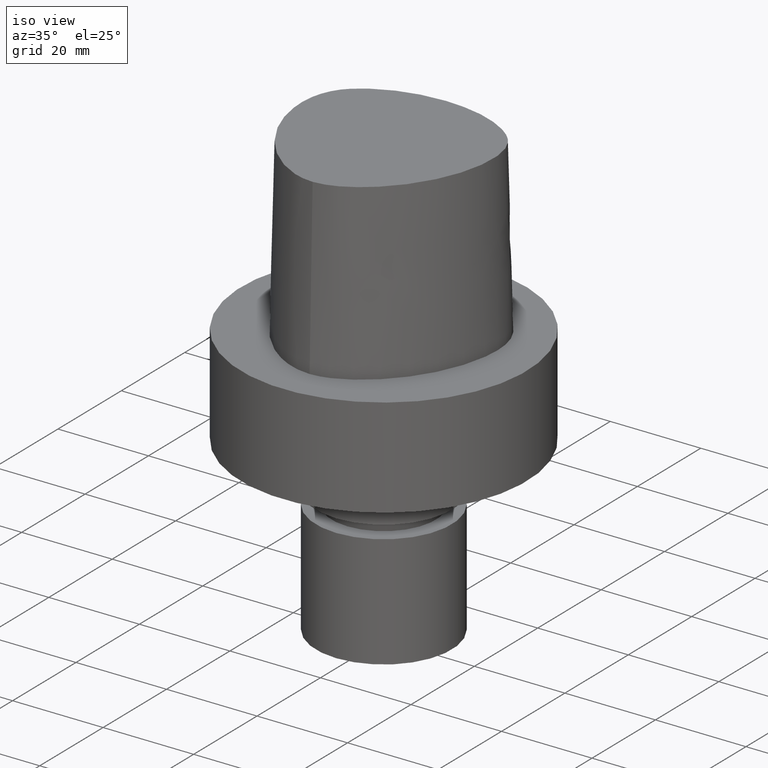
[diagram: clean part render]
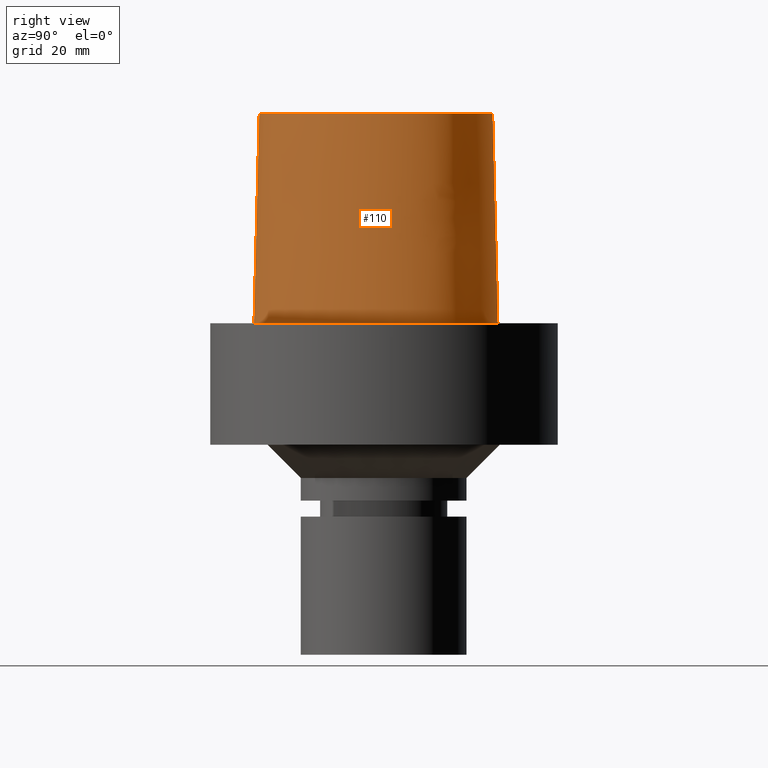
[diagram: tour spotlight — one face highlighted and labeled with its STEP entity id]
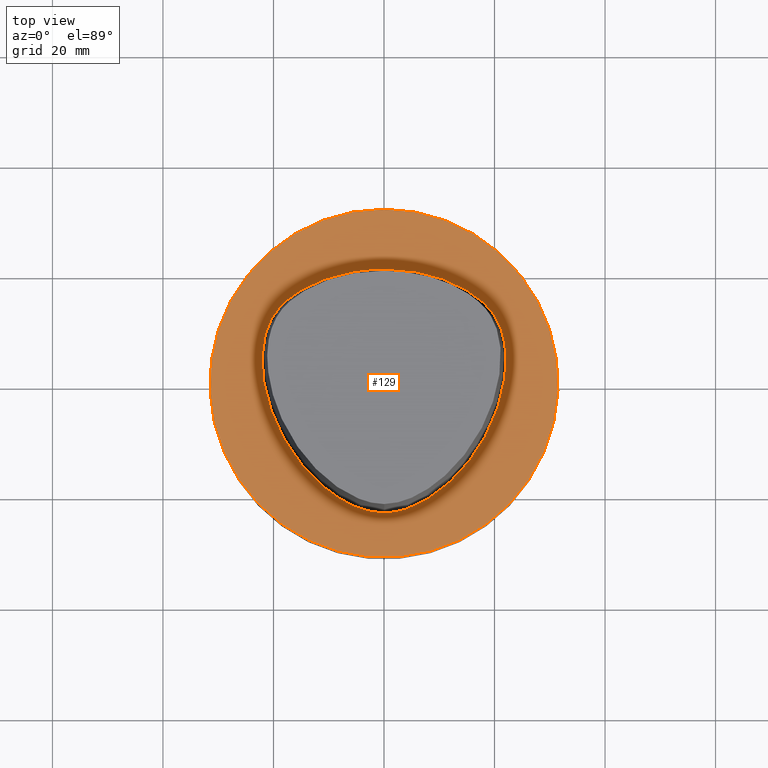
[diagram: tour spotlight — one face highlighted and labeled with its STEP entity id]
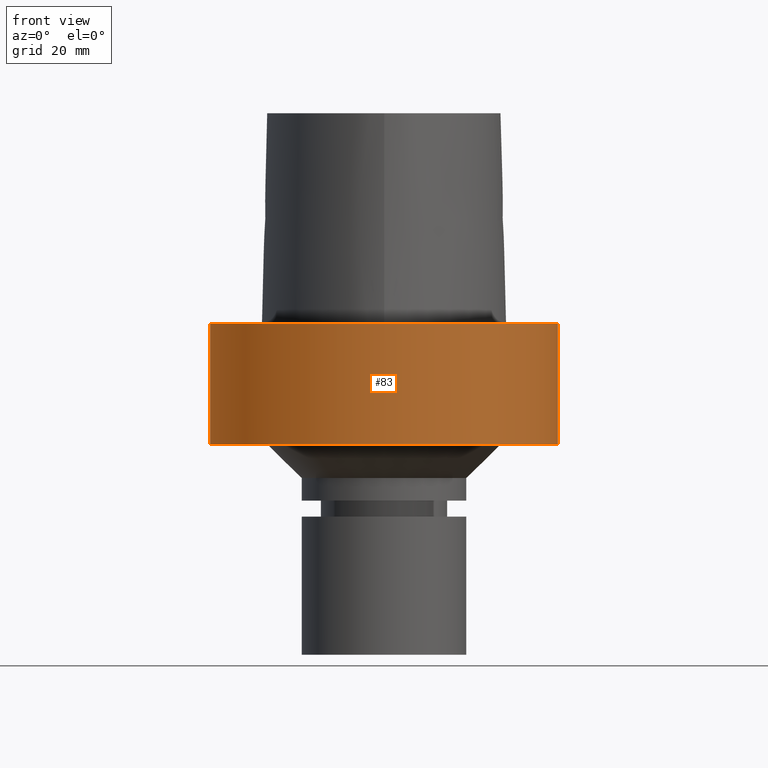
[diagram: tour spotlight — one face highlighted and labeled with its STEP entity id]
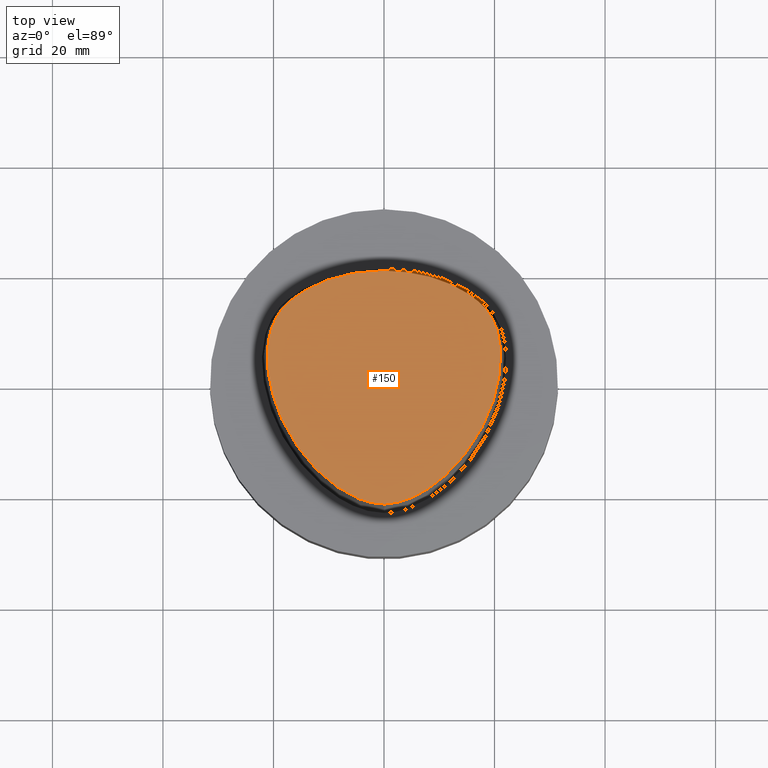
[diagram: tour spotlight — one face highlighted and labeled with its STEP entity id]
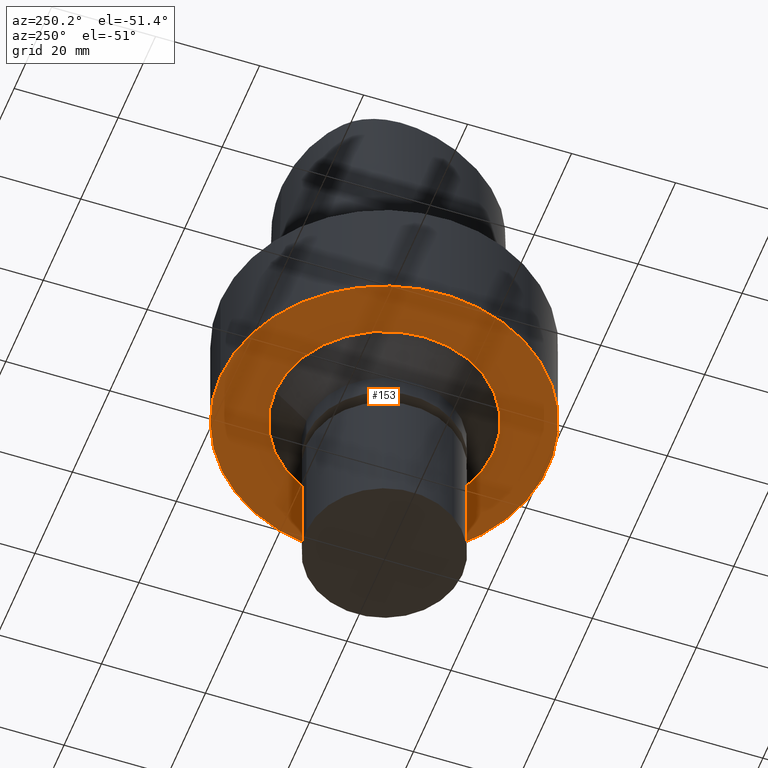
[diagram: tour spotlight — one face highlighted and labeled with its STEP entity id]
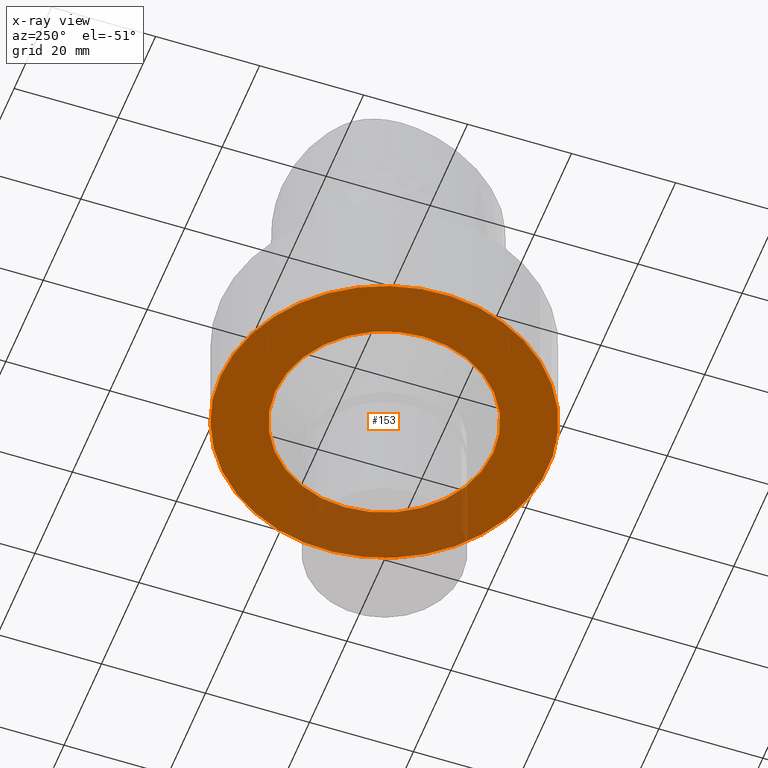
[diagram: x-ray of the same camera — body ghosted, this tour face saturated]
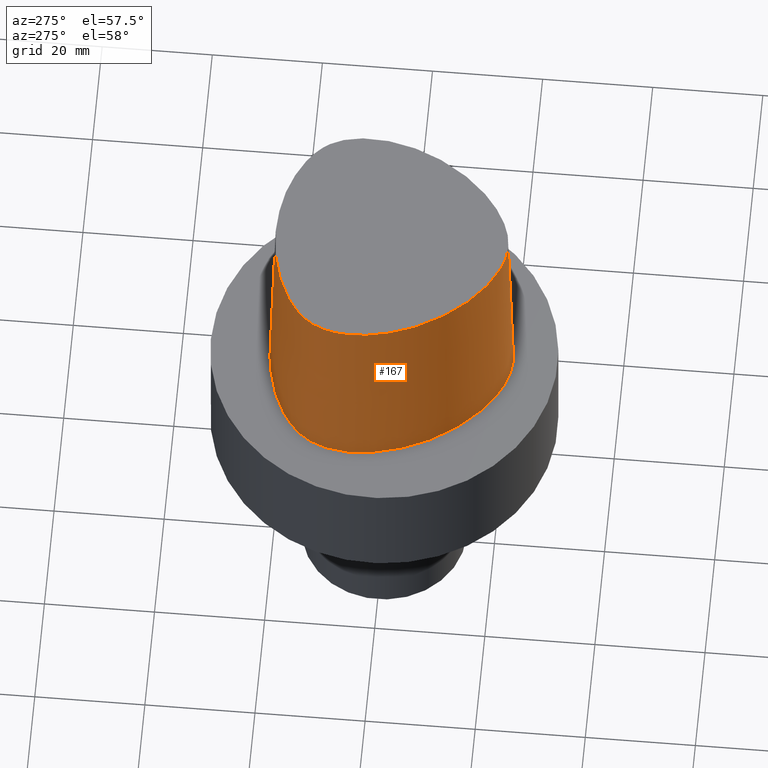
[diagram: tour spotlight — one face highlighted and labeled with its STEP entity id]
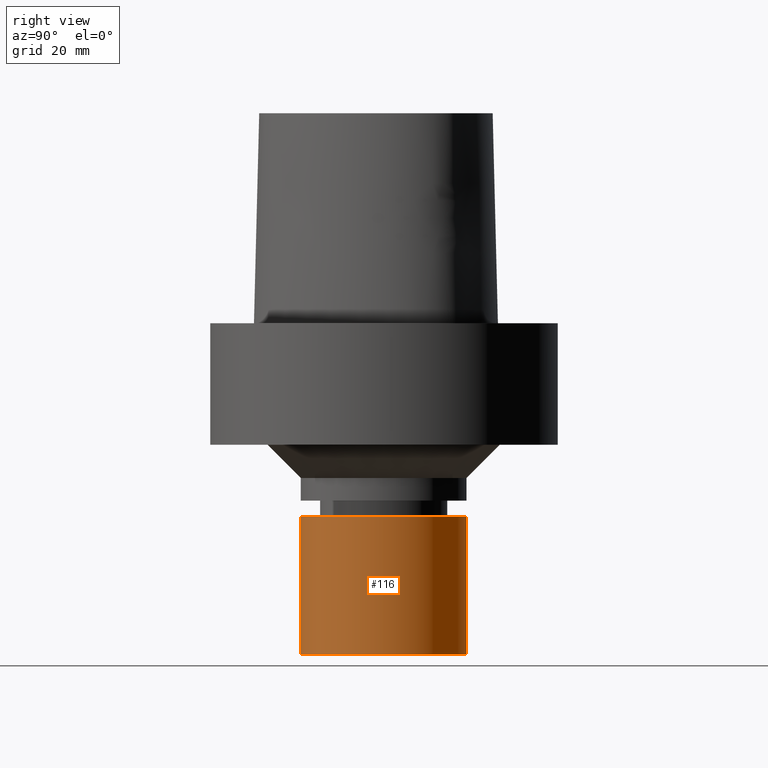
[diagram: tour spotlight — one face highlighted and labeled with its STEP entity id]
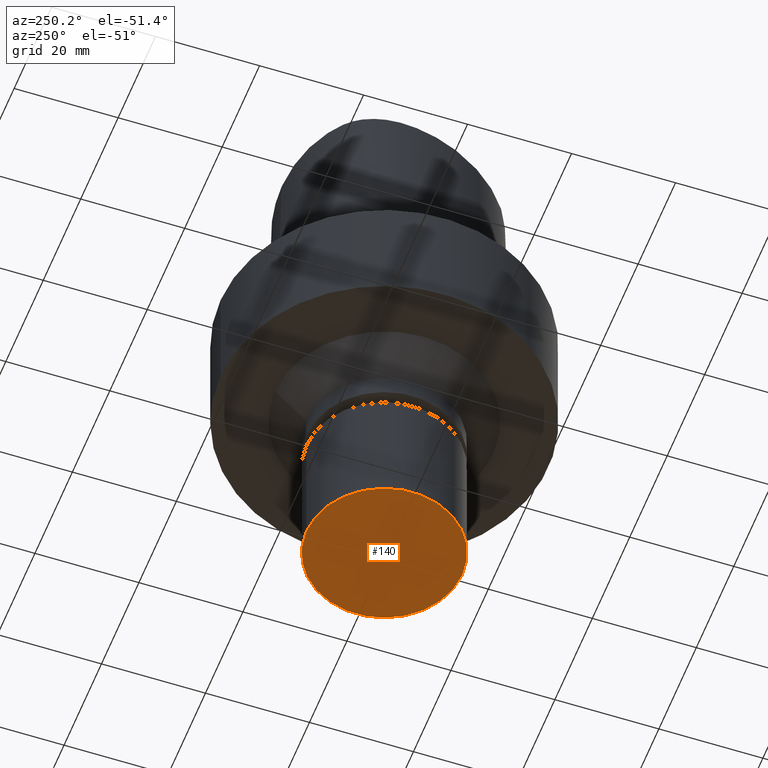
[diagram: tour spotlight — one face highlighted and labeled with its STEP entity id]
A machine part: a face-by-face anatomy tour. The part has 18 B-rep faces; the first image is the clean iso view, then the 8 largest visible faces are spotlighted one at a time (largest first), each with its STEP entity span.

Face 1 — right view, entity #110. In plain terms, the highlighted face is a freeform B-spline surface patch.
Definition (entity closure, byte-faithful):
#91=EDGE_CURVE('Unnamed[1]',#218,#219,#220,.T.);
#93=EDGE_CURVE('Unnamed[1]',#222,#223,#224,.T.);
#105=EDGE_CURVE('Unnamed[1]',#222,#219,#241,.T.);
#110=ADVANCED_FACE('Unnamed[1]',(#247),#248,.T.);
#121=EDGE_CURVE('Unnamed[1]',#223,#218,#265,.T.);
#218=VERTEX_POINT('',#381);
#219=VERTEX_POINT('',#382);
#220=B_SPLINE_CURVE_WITH_KNOTS('',3,(#383,#384,#385,#386,#387,#388,#389,#390,#391,#392,#393,#394,#395,#396,#397,#398,#399),.UNSPECIFIED.,.F.,.F.,(4,1,1,1,1,1,1,1,1,1,1,1,1,1,4),(-13.2302678617486,-12.816821991069,-12.4033761203893,-11.9899302497097,-11.57648437903,-11.1630385083504,-10.9563155730106,-10.7495926376707,-10.3361467669911,-9.92270089631145,-9.09580915495216,-8.26891741359287,-7.44202567223358,-7.02857980155394,-6.6151339308743),.UNSPECIFIED.);
#222=VERTEX_POINT('',#402);
#223=VERTEX_POINT('',#403);
#224=B_SPLINE_CURVE_WITH_KNOTS('',3,(#404,#405,#406,#407,#408,#409,#410,#411,#412,#413,#414,#415,#416,#417,#418,#419),.UNSPECIFIED.,.F.,.F.,(4,1,1,1,1,1,1,1,1,1,1,1,1,4),(6.61513393087476,6.99917207152274,7.48193246986995,7.96289324787093,8.45540287038584,9.10291653679981,9.67129810936083,10.1618749681153,10.6358867802489,11.1080734988593,11.6043706019633,12.09451993853,12.6985979284494,13.2302678617486),.UNSPECIFIED.);
#241=LINE('',#459,#460);
#247=FACE_OUTER_BOUND('',#468,.T.);
#248=B_SPLINE_SURFACE_WITH_KNOTS('',3,3,((#469,#470,#471,#472),(#473,#474,#475,#476),(#477,#478,#479,#480),(#481,#482,#483,#484),(#485,#486,#487,#488),(#489,#490,#491,#492),(#493,#494,#495,#496),(#497,#498,#499,#500),(#501,#502,#503,#504),(#505,#506,#507,#508),(#509,#510,#511,#512),(#513,#514,#515,#516),(#517,#518,#519,#520),(#521,#522,#523,#524),(#525,#526,#527,#528),(#529,#530,#531,#532),(#533,#534,#535,#536)),.UNSPECIFIED.,.F.,.F.,.F.,(4,1,1,1,1,1,1,1,1,1,1,1,1,1,4),(4,4),(-13.2302678617486,-12.816821991069,-12.4033761203893,-11.9899302497097,-11.57648437903,-11.1630385083504,-10.9563155730106,-10.7495926376707,-10.3361467669911,-9.92270089631145,-9.09580915495216,-8.26891741359287,-7.44202567223358,-7.02857980155394,-6.6151339308743),(-3.8,0.0),.UNSPECIFIED.);
#265=LINE('',#557,#558);
#381=CARTESIAN_POINT('',(0.044682985379347,20.6765087343109,1.61778115328528E-031));
#382=CARTESIAN_POINT('',(0.04359356758149,-23.4691235068931,7.78075697532443E-032));
#383=CARTESIAN_POINT('',(0.044682985379347,20.6765087343109,1.61778115328528E-031));
#384=CARTESIAN_POINT('',(1.42379272427753,20.6097915814392,8.62816615085482E-032));
#385=CARTESIAN_POINT('',(4.2230955003445,20.4837538303966,1.4791141972894E-031));
#386=CARTESIAN_POINT('',(8.47220762821777,19.6890432607088,9.86076131526265E-032));
#387=CARTESIAN_POINT('',(12.5141247708253,18.2434968480404,0.0));
#388=CARTESIAN_POINT('',(16.3038624872874,16.1734192182143,1.97215226305253E-031));
#389=CARTESIAN_POINT('',(19.1446913988473,13.7036723639434,-1.97215226305253E-031));
#390=CARTESIAN_POINT('',(20.7319894342149,11.1014620996188,0.0));
#391=CARTESIAN_POINT('',(21.7831756505763,8.28099229708081,-1.97215226305253E-031));
#392=CARTESIAN_POINT('',(22.2258240701438,4.60865440596506,0.0));
#393=CARTESIAN_POINT('',(21.7436130080666,-1.11326526354485,0.0));
#394=CARTESIAN_POINT('',(19.5519487660502,-7.95432366164584,0.0));
#395=CARTESIAN_POINT('',(14.9574167123838,-15.2089785567293,0.0));
#396=CARTESIAN_POINT('',(9.66840283021945,-20.0827414369705,-9.86076131526265E-032));
#397=CARTESIAN_POINT('',(4.51628650521788,-22.7946374572188,-9.86076131526265E-032));
#398=CARTESIAN_POINT('',(1.55867251738073,-23.4612972770043,-1.23259516440783E-032));
#399=CARTESIAN_POINT('',(0.04359356758149,-23.4691235068931,7.78075697532443E-032));
#402=CARTESIAN_POINT('',(0.038736923393866,-22.5191997536361,38.0));
#403=CARTESIAN_POINT('',(-0.001218547003662,19.7276821925089,38.0));
#404=CARTESIAN_POINT('',(0.038736923394311,-22.519199753636,38.0));
#405=CARTESIAN_POINT('',(1.31742058183662,-22.512662269405,38.0));
#406=CARTESIAN_POINT('',(4.2093773447498,-21.9116226439989,38.0));
#407=CARTESIAN_POINT('',(8.20895504542113,-19.7798683845067,38.0));
#408=CARTESIAN_POINT('',(11.9784633234593,-16.681663904162,38.0));
#409=CARTESIAN_POINT('',(15.5308821579362,-12.5807487594113,38.0));
#410=CARTESIAN_POINT('',(18.4566248438667,-7.64932246015528,38.0));
#411=CARTESIAN_POINT('',(20.4036090752029,-2.27012499825289,38.0));
#412=CARTESIAN_POINT('',(21.2357187429189,2.79891401173156,38.0));
#413=CARTESIAN_POINT('',(21.0811206267748,7.62543090736657,38.0));
#414=CARTESIAN_POINT('',(19.3383577336563,12.2772250726194,38.0));
#415=CARTESIAN_POINT('',(15.5796322014404,15.5799672120682,38.0));
#416=CARTESIAN_POINT('',(10.8392956074438,17.9834601687347,38.0));
#417=CARTESIAN_POINT('',(5.56068045850571,19.4586143858472,38.0));
#418=CARTESIAN_POINT('',(1.77223893711014,19.6418877095654,38.0));
#419=CARTESIAN_POINT('',(-0.001218367817519,19.7276822012873,38.0));
#459=CARTESIAN_POINT('',(0.038736923393866,-22.5191997536361,38.0));
#460=VECTOR('',#778,38.0118715498723);
#468=EDGE_LOOP('',(#783,#784,#785,#786));
#469=CARTESIAN_POINT('',(-0.001218367817519,19.7276822012873,38.0));
#470=CARTESIAN_POINT('',(0.014082083248157,20.0439577123075,25.3333333333066));
#471=CARTESIAN_POINT('',(0.029382534313671,20.3602332232908,12.6666666666934));
#472=CARTESIAN_POINT('',(0.044682985379347,20.6765087343109,1.61778115328528E-031));
#473=CARTESIAN_POINT('',(1.37788651195108,19.6609652834875,38.0));
#474=CARTESIAN_POINT('',(1.3931885827258,19.9772407169847,25.3333333333066));
#475=CARTESIAN_POINT('',(1.40849065356095,20.2935162254648,12.6666666666934));
#476=CARTESIAN_POINT('',(1.42379272427753,20.6097915814392,8.62816615085482E-032));
#477=CARTESIAN_POINT('',(4.135446440878,19.5347778787784,38.0));
#478=CARTESIAN_POINT('',(4.16466278851883,19.8511031866125,25.3333333333066));
#479=CARTESIAN_POINT('',(4.1938791526746,20.1674284644204,12.6666666666934));
#480=CARTESIAN_POINT('',(4.2230955003445,20.4837538303966,1.4791141972894E-031));
#481=CARTESIAN_POINT('',(8.213607363795,18.7706026638736,38.0));
#482=CARTESIAN_POINT('',(8.29980745008421,19.0767495109635,25.3333333333066));
#483=CARTESIAN_POINT('',(8.38600751285747,19.3828964329996,12.6666666666934));
#484=CARTESIAN_POINT('',(8.47220762821777,19.6890432607088,9.86076131526265E-032));
#485=CARTESIAN_POINT('',(12.1316338645671,17.3698624840857,38.0));
#486=CARTESIAN_POINT('',(12.2591308270381,17.6610739397708,25.3333333333066));
#487=CARTESIAN_POINT('',(12.3866278083543,17.9522853923553,12.6666666666934));
#488=CARTESIAN_POINT('',(12.5141247708253,18.2434968480404,0.0));
#489=CARTESIAN_POINT('',(15.7706546153679,15.3789501349612,38.0));
#490=CARTESIAN_POINT('',(15.9483905900895,15.6437731794811,25.3333333333066));
#491=CARTESIAN_POINT('',(16.1261265513272,15.9085961736944,12.6666666666934));
#492=CARTESIAN_POINT('',(16.3038624872874,16.1734192182143,1.97215226305253E-031));
#493=CARTESIAN_POINT('',(18.4265894256284,13.0570022172893,38.0));
#494=CARTESIAN_POINT('',(18.6659567517146,13.2725589420689,25.3333333333066));
#495=CARTESIAN_POINT('',(18.9053240921419,13.4881156488541,12.6666666666934));
#496=CARTESIAN_POINT('',(19.1446913988473,13.7036723639434,-1.97215226305253E-031));
#497=CARTESIAN_POINT('',(19.8679958653038,10.6923771981998,38.0));
#498=CARTESIAN_POINT('',(20.1559937048299,10.8287388264873,25.3333333333066));
#499=CARTESIAN_POINT('',(20.4439915656177,10.965100461641,12.6666666666934));
#500=CARTESIAN_POINT('',(20.7319894342149,11.1014620996188,0.0));
#501=CARTESIAN_POINT('',(20.8470867582337,8.07149548576131,38.0));
#502=CARTESIAN_POINT('',(21.1591164072431,8.14132775555392,25.3333333333066));
#503=CARTESIAN_POINT('',(21.4711459821861,8.21116003697855,12.6666666666934));
#504=CARTESIAN_POINT('',(21.7831756505763,8.28099229708081,-1.97215226305253E-031));
#505=CARTESIAN_POINT('',(21.2693244256982,4.61157245650171,38.0));
#506=CARTESIAN_POINT('',(21.5881576801997,4.6105997689982,25.3333333333066));
#507=CARTESIAN_POINT('',(21.9069908544037,4.60962709346857,12.6666666666934));
#508=CARTESIAN_POINT('',(22.2258240701438,4.60865440596506,0.0));
#509=CARTESIAN_POINT('',(20.8071610855575,-0.912828649855193,38.0));
#510=CARTESIAN_POINT('',(21.119311671178,-0.979640884839481,25.3333333333066));
#511=CARTESIAN_POINT('',(21.4314624224461,-1.04645306732201,12.6666666666934));
#512=CARTESIAN_POINT('',(21.7436130080666,-1.11326526354485,0.0));
#513=CARTESIAN_POINT('',(18.6841935581315,-7.54428794252837,38.0));
#514=CARTESIAN_POINT('',(18.9734452551861,-7.6809665891091,25.3333333333066));
#515=CARTESIAN_POINT('',(19.2626970689956,-7.81764505382656,12.6666666666934));
#516=CARTESIAN_POINT('',(19.5519487660502,-7.95432366164584,0.0));
#517=CARTESIAN_POINT('',(14.2175552814,-14.5971504342323,38.0));
#518=CARTESIAN_POINT('',(14.4641757465198,-14.8010930946929,25.3333333333066));
#519=CARTESIAN_POINT('',(14.710796247264,-15.0050359737917,12.6666666666934));
#520=CARTESIAN_POINT('',(14.9574167123838,-15.2089785567293,0.0));
#521=CARTESIAN_POINT('',(9.0844808732933,-19.3179298129689,38.0));
#522=CARTESIAN_POINT('',(9.27912152349017,-19.572866915557,25.3333333333066));
#523=CARTESIAN_POINT('',(9.47376218971294,-19.827804295621,12.6666666666934));
#524=CARTESIAN_POINT('',(9.66840283021945,-20.0827414369705,-9.86076131526265E-032));
#525=CARTESIAN_POINT('',(4.17112919194182,-21.8987568152736,38.0));
#526=CARTESIAN_POINT('',(4.28618163483998,-22.1973837173649,25.3333333333066));
#527=CARTESIAN_POINT('',(4.40123406239433,-22.4960105163661,12.6666666666934));
#528=CARTESIAN_POINT('',(4.51628650521788,-22.7946374572188,-9.86076131526265E-032));
#529=CARTESIAN_POINT('',(1.41533654381097,-22.5120888467812,38.0));
#530=CARTESIAN_POINT('',(1.46311520162011,-22.8284916374445,25.3333333333066));
#531=CARTESIAN_POINT('',(1.51089385942236,-23.144894486341,12.6666666666934));
#532=CARTESIAN_POINT('',(1.55867251738073,-23.4612972770043,-1.23259516440783E-032));
#533=CARTESIAN_POINT('',(0.038736923393866,-22.5191997536361,38.0));
#534=CARTESIAN_POINT('',(0.04035580478973,-22.8358410047159,25.3333333333066));
#535=CARTESIAN_POINT('',(0.041974686185626,-23.1524822558133,12.6666666666934));
#536=CARTESIAN_POINT('',(0.04359356758149,-23.4691235068931,7.78075697532443E-032));
#557=CARTESIAN_POINT('',(-0.001218547003662,19.7276821925089,38.0));
#558=VECTOR('',#805,38.0118715503078);
#778=DIRECTION('',(0.000127766510556,-0.024990186342461,-0.999687688361864));
#783=ORIENTED_EDGE('',*,*,#91,.F.);
#784=ORIENTED_EDGE('',*,*,#121,.F.);
#785=ORIENTED_EDGE('',*,*,#93,.F.);
#786=ORIENTED_EDGE('',*,*,#105,.T.);
#805=DIRECTION('',(0.001207557810519,0.024961321374199,-0.999687688350411));

Face 2 — top view, entity #129. In plain terms, the highlighted planar face has unit normal (-0, -0, 1).
Definition (entity closure, byte-faithful):
#91=EDGE_CURVE('Unnamed[1]',#218,#219,#220,.T.);
#101=EDGE_CURVE('Unnamed[1]',#219,#235,#236,.T.);
#129=ADVANCED_FACE('Unnamed[1]',(#275,#276),#277,.T.);
#131=EDGE_CURVE('Unnamed[1]',#235,#218,#279,.T.);
#169=EDGE_CURVE('Unnamed[1]',#332,#332,#333,.T.);
#218=VERTEX_POINT('',#381);
#219=VERTEX_POINT('',#382);
#220=B_SPLINE_CURVE_WITH_KNOTS('',3,(#383,#384,#385,#386,#387,#388,#389,#390,#391,#392,#393,#394,#395,#396,#397,#398,#399),.UNSPECIFIED.,.F.,.F.,(4,1,1,1,1,1,1,1,1,1,1,1,1,1,4),(-13.2302678617486,-12.816821991069,-12.4033761203893,-11.9899302497097,-11.57648437903,-11.1630385083504,-10.9563155730106,-10.7495926376707,-10.3361467669911,-9.92270089631145,-9.09580915495216,-8.26891741359287,-7.44202567223358,-7.02857980155394,-6.6151339308743),.UNSPECIFIED.);
#235=VERTEX_POINT('',#434);
#236=B_SPLINE_CURVE_WITH_KNOTS('',3,(#435,#436,#437,#438,#439,#440,#441,#442,#443,#444,#445,#446,#447,#448,#449,#450,#451,#452),.UNSPECIFIED.,.F.,.F.,(4,1,1,1,1,1,1,1,1,2,1,1,1,1,4),(-6.6151339308743,-6.20168806019465,-5.78824218951501,-5.37479631883537,-4.96135044815572,-4.13445870679644,-3.30756696543715,-2.89412109475751,-2.48067522407786,-2.06722935339822,-1.65378348271857,-1.24033761203893,-0.826891741359287,-0.413445870679644,0.0),.UNSPECIFIED.);
#275=FACE_BOUND('',#571,.T.);
#276=FACE_OUTER_BOUND('',#572,.T.);
#277=PLANE('',#573);
#279=CIRCLE('',#576,0.949936168436318);
#332=VERTEX_POINT('',#730);
#333=CIRCLE('',#731,31.5);
#381=CARTESIAN_POINT('',(0.044682985379347,20.6765087343109,1.61778115328528E-031));
#382=CARTESIAN_POINT('',(0.04359356758149,-23.4691235068931,7.78075697532443E-032));
#383=CARTESIAN_POINT('',(0.044682985379347,20.6765087343109,1.61778115328528E-031));
#384=CARTESIAN_POINT('',(1.42379272427753,20.6097915814392,8.62816615085482E-032));
#385=CARTESIAN_POINT('',(4.2230955003445,20.4837538303966,1.4791141972894E-031));
#386=CARTESIAN_POINT('',(8.47220762821777,19.6890432607088,9.86076131526265E-032));
#387=CARTESIAN_POINT('',(12.5141247708253,18.2434968480404,0.0));
#388=CARTESIAN_POINT('',(16.3038624872874,16.1734192182143,1.97215226305253E-031));
#389=CARTESIAN_POINT('',(19.1446913988473,13.7036723639434,-1.97215226305253E-031));
#390=CARTESIAN_POINT('',(20.7319894342149,11.1014620996188,0.0));
#391=CARTESIAN_POINT('',(21.7831756505763,8.28099229708081,-1.97215226305253E-031));
#392=CARTESIAN_POINT('',(22.2258240701438,4.60865440596506,0.0));
#393=CARTESIAN_POINT('',(21.7436130080666,-1.11326526354485,0.0));
#394=CARTESIAN_POINT('',(19.5519487660502,-7.95432366164584,0.0));
#395=CARTESIAN_POINT('',(14.9574167123838,-15.2089785567293,0.0));
#396=CARTESIAN_POINT('',(9.66840283021945,-20.0827414369705,-9.86076131526265E-032));
#397=CARTESIAN_POINT('',(4.51628650521788,-22.7946374572188,-9.86076131526265E-032));
#398=CARTESIAN_POINT('',(1.55867251738073,-23.4612972770043,-1.23259516440783E-032));
#399=CARTESIAN_POINT('',(0.04359356758149,-23.4691235068931,7.78075697532443E-032));
#434=CARTESIAN_POINT('',(-0.045171994691285,20.6766009553285,1.6755590516169E-031));
#435=CARTESIAN_POINT('',(0.04359356758149,-23.4691235068931,7.78075697532443E-032));
#436=CARTESIAN_POINT('',(-1.4714994713963,-23.4767895315797,2.46519032881566E-032));
#437=CARTESIAN_POINT('',(-4.43923476371401,-22.821149804767,-4.93038065763132E-032));
#438=CARTESIAN_POINT('',(-8.35043230079961,-20.8000751253325,-9.86076131526265E-032));
#439=CARTESIAN_POINT('',(-11.744900222602,-18.1556117874078,-1.97215226305253E-031));
#440=CARTESIAN_POINT('',(-15.6989602501314,-14.0406306929147,-1.97215226305253E-031));
#441=CARTESIAN_POINT('',(-19.5352875070682,-8.00624990770787,1.97215226305253E-031));
#442=CARTESIAN_POINT('',(-21.7205626190491,-1.16081708945282,0.0));
#443=CARTESIAN_POINT('',(-22.2486616783342,4.54965558738736,0.0));
#444=CARTESIAN_POINT('',(-21.6646421256468,9.00229539124618,0.0));
#445=CARTESIAN_POINT('',(-20.3945635471922,11.7780544971003,0.0));
#446=CARTESIAN_POINT('',(-18.5925528034471,14.1980602922581,0.0));
#447=CARTESIAN_POINT('',(-16.3226584122258,16.1777748720707,0.0));
#448=CARTESIAN_POINT('',(-12.5076407874579,18.2524201541303,9.86076131526265E-032));
#449=CARTESIAN_POINT('',(-8.46776192107786,19.679114377952,9.86076131526265E-032));
#450=CARTESIAN_POINT('',(-4.23043497193604,20.487781597334,1.97215226305253E-031));
#451=CARTESIAN_POINT('',(-1.42313094248379,20.6127745766442,1.10933564796705E-031));
#452=CARTESIAN_POINT('',(-0.045171994691285,20.6766009553285,1.6755590516169E-031));
#571=EDGE_LOOP('',(#817,#818,#819));
#572=EDGE_LOOP('',(#820));
#573=AXIS2_PLACEMENT_3D('',#821,#822,#823);
#576=AXIS2_PLACEMENT_3D('',#824,#825,#826);
#730=CARTESIAN_POINT('',(-3.88267476788467E-031,31.5,3.85763741731416E-015));
#731=AXIS2_PLACEMENT_3D('',#881,#882,#883);
#817=ORIENTED_EDGE('',*,*,#91,.T.);
#818=ORIENTED_EDGE('',*,*,#101,.T.);
#819=ORIENTED_EDGE('',*,*,#131,.T.);
#820=ORIENTED_EDGE('',*,*,#169,.F.);
#821=CARTESIAN_POINT('',(-1.94133738394233E-031,15.75,1.92881870865708E-015));
#822=DIRECTION('',(-6.12323399573677E-017,-1.22464679914735E-016,1.0));
#823=DIRECTION('',(1.23259516440783E-032,-1.0,-1.22464679914735E-016));
#824=CARTESIAN_POINT('',(-0.001218547003662,19.7276821925089,1.97178046083078E-015));
#825=DIRECTION('',(6.12323399573677E-017,1.22464679914735E-016,-1.0));
#826=DIRECTION('',(-0.046269895968506,0.998928974816059,1.19500303158668E-016));
#881=CARTESIAN_POINT('',(0.0,0.0,0.0));
#882=DIRECTION('',(6.12323399573677E-017,1.22464679914735E-016,-1.0));
#883=DIRECTION('',(-1.23259516440783E-032,1.0,1.22464679914735E-016));

Face 3 — front view, entity #83. In plain terms, the highlighted cylindrical surface (bore or boss wall) has radius 31.5 mm, axis along (0, 0, -1).
Definition (entity closure, byte-faithful):
#83=ADVANCED_FACE('Unnamed[1]',(#204,#205),#206,.T.);
#123=EDGE_CURVE('Unnamed[1]',#267,#267,#268,.T.);
#169=EDGE_CURVE('Unnamed[1]',#332,#332,#333,.T.);
#204=FACE_BOUND('',#364,.T.);
#205=FACE_BOUND('',#365,.T.);
#206=CYLINDRICAL_SURFACE('',#366,31.5);
#267=VERTEX_POINT('',#561);
#268=CIRCLE('',#562,31.5);
#332=VERTEX_POINT('',#730);
#333=CIRCLE('',#731,31.5);
#364=EDGE_LOOP('',(#749));
#365=EDGE_LOOP('',(#750));
#366=AXIS2_PLACEMENT_3D('',#751,#752,#753);
#561=CARTESIAN_POINT('',(1.34711147906212E-015,31.5,-22.0000000000006));
#562=AXIS2_PLACEMENT_3D('',#806,#807,#808);
#730=CARTESIAN_POINT('',(-3.88267476788467E-031,31.5,3.85763741731416E-015));
#731=AXIS2_PLACEMENT_3D('',#881,#882,#883);
#749=ORIENTED_EDGE('',*,*,#123,.F.);
#750=ORIENTED_EDGE('',*,*,#169,.T.);
#751=CARTESIAN_POINT('',(6.73555739531062E-016,1.34711147906212E-015,-11.0000000000003));
#752=DIRECTION('',(6.12323399573677E-017,1.22464679914735E-016,-1.0));
#753=DIRECTION('',(-1.23259516440783E-032,1.0,1.22464679914735E-016));
#806=CARTESIAN_POINT('',(1.34711147906212E-015,2.69422295812425E-015,-22.0000000000006));
#807=DIRECTION('',(6.12323399573677E-017,1.22464679914735E-016,-1.0));
#808=DIRECTION('',(-1.23259516440783E-032,1.0,1.22464679914735E-016));
#881=CARTESIAN_POINT('',(0.0,0.0,0.0));
#882=DIRECTION('',(6.12323399573677E-017,1.22464679914735E-016,-1.0));
#883=DIRECTION('',(-1.23259516440783E-032,1.0,1.22464679914735E-016));

Face 4 — top view, entity #150. In plain terms, the highlighted planar face has unit normal (-0, 0, 1).
Definition (entity closure, byte-faithful):
#93=EDGE_CURVE('Unnamed[1]',#222,#223,#224,.T.);
#150=ADVANCED_FACE('Unnamed[1]',(#305),#306,.T.);
#157=EDGE_CURVE('Unnamed[1]',#223,#222,#315,.T.);
#222=VERTEX_POINT('',#402);
#223=VERTEX_POINT('',#403);
#224=B_SPLINE_CURVE_WITH_KNOTS('',3,(#404,#405,#406,#407,#408,#409,#410,#411,#412,#413,#414,#415,#416,#417,#418,#419),.UNSPECIFIED.,.F.,.F.,(4,1,1,1,1,1,1,1,1,1,1,1,1,4),(6.61513393087476,6.99917207152274,7.48193246986995,7.96289324787093,8.45540287038584,9.10291653679981,9.67129810936083,10.1618749681153,10.6358867802489,11.1080734988593,11.6043706019633,12.09451993853,12.6985979284494,13.2302678617486),.UNSPECIFIED.);
#305=FACE_OUTER_BOUND('',#608,.T.);
#306=PLANE('',#609);
#315=B_SPLINE_CURVE_WITH_KNOTS('',3,(#622,#623,#624,#625,#626,#627,#628,#629,#630,#631,#632,#633,#634,#635,#636,#637),.UNSPECIFIED.,.F.,.F.,(4,1,1,1,1,1,1,1,1,1,1,1,1,4),(0.0,0.447924670568964,0.9388024242536,1.50591409090711,2.07314340012323,2.72424957442464,3.2253501842849,3.80982102049476,4.34867996267067,4.85900173381144,5.37972031856977,6.03459825488646,6.61113557741484,6.61513393087395),.UNSPECIFIED.);
#402=CARTESIAN_POINT('',(0.038736923393866,-22.5191997536361,38.0));
#403=CARTESIAN_POINT('',(-0.001218547003662,19.7276821925089,38.0));
#404=CARTESIAN_POINT('',(0.038736923394311,-22.519199753636,38.0));
#405=CARTESIAN_POINT('',(1.31742058183662,-22.512662269405,38.0));
#406=CARTESIAN_POINT('',(4.2093773447498,-21.9116226439989,38.0));
#407=CARTESIAN_POINT('',(8.20895504542113,-19.7798683845067,38.0));
#408=CARTESIAN_POINT('',(11.9784633234593,-16.681663904162,38.0));
#409=CARTESIAN_POINT('',(15.5308821579362,-12.5807487594113,38.0));
#410=CARTESIAN_POINT('',(18.4566248438667,-7.64932246015528,38.0));
#411=CARTESIAN_POINT('',(20.4036090752029,-2.27012499825289,38.0));
#412=CARTESIAN_POINT('',(21.2357187429189,2.79891401173156,38.0));
#413=CARTESIAN_POINT('',(21.0811206267748,7.62543090736657,38.0));
#414=CARTESIAN_POINT('',(19.3383577336563,12.2772250726194,38.0));
#415=CARTESIAN_POINT('',(15.5796322014404,15.5799672120682,38.0));
#416=CARTESIAN_POINT('',(10.8392956074438,17.9834601687347,38.0));
#417=CARTESIAN_POINT('',(5.56068045850571,19.4586143858472,38.0));
#418=CARTESIAN_POINT('',(1.77223893711014,19.6418877095654,38.0));
#419=CARTESIAN_POINT('',(-0.001218367817519,19.7276822012873,38.0));
#608=EDGE_LOOP('',(#852,#853));
#609=AXIS2_PLACEMENT_3D('',#854,#855,#856);
#622=CARTESIAN_POINT('',(-0.001218547003662,19.7276821925089,38.0));
#623=CARTESIAN_POINT('',(-1.49408492138443,19.6585333605309,38.0));
#624=CARTESIAN_POINT('',(-4.62297391420352,19.513604770166,38.0));
#625=CARTESIAN_POINT('',(-9.56160616752212,18.4291575730197,38.0));
#626=CARTESIAN_POINT('',(-14.5427684976927,16.2697452580488,38.0));
#627=CARTESIAN_POINT('',(-19.4315563551602,12.5302108980807,38.0));
#628=CARTESIAN_POINT('',(-21.306358833612,6.76352894547076,38.0));
#629=CARTESIAN_POINT('',(-21.0724946936277,0.957075236984038,38.0));
#630=CARTESIAN_POINT('',(-19.7876470880144,-4.34628503581652,38.0));
#631=CARTESIAN_POINT('',(-17.5396999600095,-9.33314444653089,38.0));
#632=CARTESIAN_POINT('',(-14.645447733857,-13.7185760345629,38.0));
#633=CARTESIAN_POINT('',(-10.7996726536643,-17.856257282137,38.0));
#634=CARTESIAN_POINT('',(-6.00479510196376,-21.2687382067675,38.0));
#635=CARTESIAN_POINT('',(-1.90747171908525,-22.5250621415864,38.0));
#636=CARTESIAN_POINT('',(0.025424107066464,-22.5192678176378,38.0));
#637=CARTESIAN_POINT('',(0.038736923394311,-22.519199753636,38.0));
#852=ORIENTED_EDGE('',*,*,#157,.T.);
#853=ORIENTED_EDGE('',*,*,#93,.T.);
#854=CARTESIAN_POINT('',(0.008647668684817,1.77491953635526,38.0));
#855=DIRECTION('',(-0.0,2.95577857036584E-049,1.0));
#856=DIRECTION('',(1.0,0.0,0.0));

Face 5 — auxiliary view, entity #153. An x-ray twin of the same camera follows (body ghosted, this face saturated) — the face is partly hidden behind the body. In plain terms, the highlighted planar face has unit normal (0, -0, -1).
Definition (entity closure, byte-faithful):
#95=EDGE_CURVE('Unnamed[1]',#226,#226,#227,.T.);
#123=EDGE_CURVE('Unnamed[1]',#267,#267,#268,.T.);
#153=ADVANCED_FACE('Unnamed[1]',(#309,#310),#311,.T.);
#226=VERTEX_POINT('',#422);
#227=CIRCLE('',#423,20.9999999999995);
#267=VERTEX_POINT('',#561);
#268=CIRCLE('',#562,31.5);
#309=FACE_BOUND('',#613,.T.);
#310=FACE_OUTER_BOUND('',#614,.T.);
#311=PLANE('',#615);
#422=CARTESIAN_POINT('',(1.34711147906212E-015,20.9999999999995,-22.0000000000005));
#423=AXIS2_PLACEMENT_3D('',#766,#767,#768);
#561=CARTESIAN_POINT('',(1.34711147906212E-015,31.5,-22.0000000000006));
#562=AXIS2_PLACEMENT_3D('',#806,#807,#808);
#613=EDGE_LOOP('',(#858));
#614=EDGE_LOOP('',(#859));
#615=AXIS2_PLACEMENT_3D('',#860,#861,#862);
#766=CARTESIAN_POINT('',(1.34711147906212E-015,2.69422295812424E-015,-22.0000000000005));
#767=DIRECTION('',(6.12323399573677E-017,1.22464679914735E-016,-1.0));
#768=DIRECTION('',(-1.23259516440783E-032,1.0,1.22464679914735E-016));
#806=CARTESIAN_POINT('',(1.34711147906212E-015,2.69422295812425E-015,-22.0000000000006));
#807=DIRECTION('',(6.12323399573677E-017,1.22464679914735E-016,-1.0));
#808=DIRECTION('',(-1.23259516440783E-032,1.0,1.22464679914735E-016));
#858=ORIENTED_EDGE('',*,*,#95,.F.);
#859=ORIENTED_EDGE('',*,*,#123,.T.);
#860=CARTESIAN_POINT('',(1.34711147906212E-015,26.2499999999997,-22.0000000000005));
#861=DIRECTION('',(6.12323399573677E-017,-4.61448689181902E-015,-1.0));
#862=DIRECTION('',(2.7772867735791E-031,1.0,-4.61448689181902E-015));

Face 6 — auxiliary view, entity #167. In plain terms, the highlighted face is a freeform B-spline surface patch.
Definition (entity closure, byte-faithful):
#101=EDGE_CURVE('Unnamed[1]',#219,#235,#236,.T.);
#105=EDGE_CURVE('Unnamed[1]',#222,#219,#241,.T.);
#155=EDGE_CURVE('Unnamed[1]',#223,#235,#313,.T.);
#157=EDGE_CURVE('Unnamed[1]',#223,#222,#315,.T.);
#167=ADVANCED_FACE('Unnamed[1]',(#329),#330,.T.);
#219=VERTEX_POINT('',#382);
#222=VERTEX_POINT('',#402);
#223=VERTEX_POINT('',#403);
#235=VERTEX_POINT('',#434);
#236=B_SPLINE_CURVE_WITH_KNOTS('',3,(#435,#436,#437,#438,#439,#440,#441,#442,#443,#444,#445,#446,#447,#448,#449,#450,#451,#452),.UNSPECIFIED.,.F.,.F.,(4,1,1,1,1,1,1,1,1,2,1,1,1,1,4),(-6.6151339308743,-6.20168806019465,-5.78824218951501,-5.37479631883537,-4.96135044815572,-4.13445870679644,-3.30756696543715,-2.89412109475751,-2.48067522407786,-2.06722935339822,-1.65378348271857,-1.24033761203893,-0.826891741359287,-0.413445870679644,0.0),.UNSPECIFIED.);
#241=LINE('',#459,#460);
#313=LINE('',#618,#619);
#315=B_SPLINE_CURVE_WITH_KNOTS('',3,(#622,#623,#624,#625,#626,#627,#628,#629,#630,#631,#632,#633,#634,#635,#636,#637),.UNSPECIFIED.,.F.,.F.,(4,1,1,1,1,1,1,1,1,1,1,1,1,4),(0.0,0.447924670568964,0.9388024242536,1.50591409090711,2.07314340012323,2.72424957442464,3.2253501842849,3.80982102049476,4.34867996267067,4.85900173381144,5.37972031856977,6.03459825488646,6.61113557741484,6.61513393087395),.UNSPECIFIED.);
#329=FACE_OUTER_BOUND('',#655,.T.);
#330=B_SPLINE_SURFACE_WITH_KNOTS('',3,3,((#656,#657,#658,#659),(#660,#661,#662,#663),(#664,#665,#666,#667),(#668,#669,#670,#671),(#672,#673,#674,#675),(#676,#677,#678,#679),(#680,#681,#682,#683),(#684,#685,#686,#687),(#688,#689,#690,#691),(#692,#693,#694,#695),(#696,#697,#698,#699),(#700,#701,#702,#703),(#704,#705,#706,#707),(#708,#709,#710,#711),(#712,#713,#714,#715),(#716,#717,#718,#719),(#720,#721,#722,#723),(#724,#725,#726,#727)),.UNSPECIFIED.,.F.,.F.,.F.,(4,1,1,1,1,1,1,1,1,2,1,1,1,1,4),(4,4),(-6.6151339308743,-6.20168806019465,-5.78824218951501,-5.37479631883537,-4.96135044815572,-4.13445870679644,-3.30756696543715,-2.89412109475751,-2.48067522407786,-2.06722935339822,-1.65378348271857,-1.24033761203893,-0.826891741359287,-0.413445870679644,0.0),(-3.8,0.0),.UNSPECIFIED.);
#382=CARTESIAN_POINT('',(0.04359356758149,-23.4691235068931,7.78075697532443E-032));
#402=CARTESIAN_POINT('',(0.038736923393866,-22.5191997536361,38.0));
#403=CARTESIAN_POINT('',(-0.001218547003662,19.7276821925089,38.0));
#434=CARTESIAN_POINT('',(-0.045171994691285,20.6766009553285,1.6755590516169E-031));
#435=CARTESIAN_POINT('',(0.04359356758149,-23.4691235068931,7.78075697532443E-032));
#436=CARTESIAN_POINT('',(-1.4714994713963,-23.4767895315797,2.46519032881566E-032));
#437=CARTESIAN_POINT('',(-4.43923476371401,-22.821149804767,-4.93038065763132E-032));
#438=CARTESIAN_POINT('',(-8.35043230079961,-20.8000751253325,-9.86076131526265E-032));
#439=CARTESIAN_POINT('',(-11.744900222602,-18.1556117874078,-1.97215226305253E-031));
#440=CARTESIAN_POINT('',(-15.6989602501314,-14.0406306929147,-1.97215226305253E-031));
#441=CARTESIAN_POINT('',(-19.5352875070682,-8.00624990770787,1.97215226305253E-031));
#442=CARTESIAN_POINT('',(-21.7205626190491,-1.16081708945282,0.0));
#443=CARTESIAN_POINT('',(-22.2486616783342,4.54965558738736,0.0));
#444=CARTESIAN_POINT('',(-21.6646421256468,9.00229539124618,0.0));
#445=CARTESIAN_POINT('',(-20.3945635471922,11.7780544971003,0.0));
#446=CARTESIAN_POINT('',(-18.5925528034471,14.1980602922581,0.0));
#447=CARTESIAN_POINT('',(-16.3226584122258,16.1777748720707,0.0));
#448=CARTESIAN_POINT('',(-12.5076407874579,18.2524201541303,9.86076131526265E-032));
#449=CARTESIAN_POINT('',(-8.46776192107786,19.679114377952,9.86076131526265E-032));
#450=CARTESIAN_POINT('',(-4.23043497193604,20.487781597334,1.97215226305253E-031));
#451=CARTESIAN_POINT('',(-1.42313094248379,20.6127745766442,1.10933564796705E-031));
#452=CARTESIAN_POINT('',(-0.045171994691285,20.6766009553285,1.6755590516169E-031));
#459=CARTESIAN_POINT('',(0.038736923393866,-22.5191997536361,38.0));
#460=VECTOR('',#778,38.0118715498723);
#618=CARTESIAN_POINT('',(-0.001218547003662,19.7276821925089,38.0));
#619=VECTOR('',#863,38.0118715498723);
#622=CARTESIAN_POINT('',(-0.001218547003662,19.7276821925089,38.0));
#623=CARTESIAN_POINT('',(-1.49408492138443,19.6585333605309,38.0));
#624=CARTESIAN_POINT('',(-4.62297391420352,19.513604770166,38.0));
#625=CARTESIAN_POINT('',(-9.56160616752212,18.4291575730197,38.0));
#626=CARTESIAN_POINT('',(-14.5427684976927,16.2697452580488,38.0));
#627=CARTESIAN_POINT('',(-19.4315563551602,12.5302108980807,38.0));
#628=CARTESIAN_POINT('',(-21.306358833612,6.76352894547076,38.0));
#629=CARTESIAN_POINT('',(-21.0724946936277,0.957075236984038,38.0));
#630=CARTESIAN_POINT('',(-19.7876470880144,-4.34628503581652,38.0));
#631=CARTESIAN_POINT('',(-17.5396999600095,-9.33314444653089,38.0));
#632=CARTESIAN_POINT('',(-14.645447733857,-13.7185760345629,38.0));
#633=CARTESIAN_POINT('',(-10.7996726536643,-17.856257282137,38.0));
#634=CARTESIAN_POINT('',(-6.00479510196376,-21.2687382067675,38.0));
#635=CARTESIAN_POINT('',(-1.90747171908525,-22.5250621415864,38.0));
#636=CARTESIAN_POINT('',(0.025424107066464,-22.5192678176378,38.0));
#637=CARTESIAN_POINT('',(0.038736923394311,-22.519199753636,38.0));
#655=EDGE_LOOP('',(#877,#878,#879,#880));
#656=CARTESIAN_POINT('',(0.038736923393866,-22.5191997536361,38.0));
#657=CARTESIAN_POINT('',(0.04035580478973,-22.8358410047159,25.3333333333066));
#658=CARTESIAN_POINT('',(0.041974686185626,-23.1524822558133,12.6666666666934));
#659=CARTESIAN_POINT('',(0.04359356758149,-23.4691235068931,7.78075697532443E-032));
#660=CARTESIAN_POINT('',(-1.33786123484754,-22.5261650259856,38.0));
#661=CARTESIAN_POINT('',(-1.38240731367927,-22.8430399310626,25.3333333333066));
#662=CARTESIAN_POINT('',(-1.42695339249092,-23.1599147815484,12.6666666666934));
#663=CARTESIAN_POINT('',(-1.4714994713963,-23.4767895315797,2.46519032881566E-032));
#664=CARTESIAN_POINT('',(-4.08909358431842,-21.9268839879558,38.0));
#665=CARTESIAN_POINT('',(-4.20580731135515,-22.2249725500078,25.3333333333066));
#666=CARTESIAN_POINT('',(-4.32252104640446,-22.5230611651922,12.6666666666934));
#667=CARTESIAN_POINT('',(-4.43923476371401,-22.821149804767,-4.93038065763132E-032));
#668=CARTESIAN_POINT('',(-7.8333083619947,-19.9973514861616,38.0));
#669=CARTESIAN_POINT('',(-8.00568301809614,-20.2649260859405,25.3333333333066));
#670=CARTESIAN_POINT('',(-8.1780576640789,-20.532500564315,12.6666666666934));
#671=CARTESIAN_POINT('',(-8.35043230079961,-20.8000751253325,-9.86076131526265E-032));
#672=CARTESIAN_POINT('',(-11.1035071147626,-17.450554957873,38.0));
#673=CARTESIAN_POINT('',(-11.3173048160562,-17.6855739222454,25.3333333333066));
#674=CARTESIAN_POINT('',(-11.5311025116181,-17.9205928617968,12.6666666666934));
#675=CARTESIAN_POINT('',(-11.744900222602,-18.1556117874078,-1.97215226305253E-031));
#676=CARTESIAN_POINT('',(-14.9379535189057,-13.461132049697,38.0));
#677=CARTESIAN_POINT('',(-15.191622410671,-13.6542981711372,25.3333333333066));
#678=CARTESIAN_POINT('',(-15.4452913389853,-13.8474645327131,12.6666666666934));
#679=CARTESIAN_POINT('',(-15.6989602501314,-14.0406306929147,-1.97215226305253E-031));
#680=CARTESIAN_POINT('',(-18.6681263017223,-7.59391757463204,38.0));
#681=CARTESIAN_POINT('',(-18.9571800800711,-7.73136168081928,25.3333333333066));
#682=CARTESIAN_POINT('',(-19.2462337287194,-7.86880572399774,12.6666666666934));
#683=CARTESIAN_POINT('',(-19.5352875070682,-8.00624990770787,1.97215226305253E-031));
#684=CARTESIAN_POINT('',(-20.7857899858339,-0.952862819790525,38.0));
#685=CARTESIAN_POINT('',(-21.0973808305434,-1.02218087467418,25.3333333333066));
#686=CARTESIAN_POINT('',(-21.408971677436,-1.09149899580772,12.6666666666934));
#687=CARTESIAN_POINT('',(-21.7205626190491,-1.16081708945282,0.0));
#688=CARTESIAN_POINT('',(-21.2911760556836,4.5469215763113,38.0));
#689=CARTESIAN_POINT('',(-21.610337904926,4.54783292082248,25.3333333333066));
#690=CARTESIAN_POINT('',(-21.9294998290918,4.54874426225691,12.6666666666934));
#691=CARTESIAN_POINT('',(-22.2486616783342,4.54965558738736,0.0));
#692=CARTESIAN_POINT('',(-20.7345309521958,8.74909381391006,38.0));
#693=CARTESIAN_POINT('',(-21.0445680426217,8.83349432450556,25.3333333333066));
#694=CARTESIAN_POINT('',(-21.3546050933631,8.91789488065068,12.6666666666934));
#695=CARTESIAN_POINT('',(-21.6646421256468,9.00229539124618,0.0));
#696=CARTESIAN_POINT('',(-19.5531512296439,11.3174844040833,38.0));
#697=CARTESIAN_POINT('',(-19.8336219699984,11.4710077674213,25.3333333333066));
#698=CARTESIAN_POINT('',(-20.1140927680763,11.6245311337623,12.6666666666934));
#699=CARTESIAN_POINT('',(-20.3945635471922,11.7780544971003,0.0));
#700=CARTESIAN_POINT('',(-17.9100913688793,13.524027510437,38.0));
#701=CARTESIAN_POINT('',(-18.1375785458768,13.7487051053655,25.3333333333066));
#702=CARTESIAN_POINT('',(-18.365065665211,13.9733826973296,12.6666666666934));
#703=CARTESIAN_POINT('',(-18.5925528034471,14.1980602922581,0.0));
#704=CARTESIAN_POINT('',(-15.7996349656398,15.3762170634413,38.0));
#705=CARTESIAN_POINT('',(-15.9739761051783,15.6434029846179,25.3333333333066));
#706=CARTESIAN_POINT('',(-16.1483172726872,15.9105889315134,12.6666666666934));
#707=CARTESIAN_POINT('',(-16.3226584122258,16.1777748720707,0.0));
#708=CARTESIAN_POINT('',(-12.1175640002064,17.3825162484012,38.0));
#709=CARTESIAN_POINT('',(-12.2475895903055,17.6724842099619,25.3333333333066));
#710=CARTESIAN_POINT('',(-12.3776152070492,17.9624521925696,12.6666666666934));
#711=CARTESIAN_POINT('',(-12.5076407874579,18.2524201541303,9.86076131526265E-032));
#712=CARTESIAN_POINT('',(-8.21761151654222,18.7588585989994,38.0));
#713=CARTESIAN_POINT('',(-8.30099497910627,19.0656105427881,25.3333333333066));
#714=CARTESIAN_POINT('',(-8.38437843913309,19.3723624535439,12.6666666666934));
#715=CARTESIAN_POINT('',(-8.46776192107786,19.679114377952,9.86076131526265E-032));
#716=CARTESIAN_POINT('',(-4.13466093881225,19.5396850837055,38.0));
#717=CARTESIAN_POINT('',(-4.16658562115465,19.8557172636973,25.3333333333066));
#718=CARTESIAN_POINT('',(-4.19851029939059,20.1717494367229,12.6666666666934));
#719=CARTESIAN_POINT('',(-4.23043497193604,20.487781597334,1.97215226305253E-031));
#720=CARTESIAN_POINT('',(-1.37917220403684,19.6638560588908,38.0));
#721=CARTESIAN_POINT('',(-1.39382511685176,19.98016223565,25.3333333333066));
#722=CARTESIAN_POINT('',(-1.40847802945569,20.296468399885,12.6666666666934));
#723=CARTESIAN_POINT('',(-1.42313094248379,20.6127745766442,1.10933564796705E-031));
#724=CARTESIAN_POINT('',(-0.001218547003662,19.7276821925089,38.0));
#725=CARTESIAN_POINT('',(-0.015869696232855,20.043988446791,25.3333333333066));
#726=CARTESIAN_POINT('',(-0.030520845462092,20.3602947010464,12.6666666666934));
#727=CARTESIAN_POINT('',(-0.045171994691285,20.6766009553285,1.6755590516169E-031));
#778=DIRECTION('',(0.000127766510556,-0.024990186342461,-0.999687688361864));
#863=DIRECTION('',(-0.001156308434589,0.02496374748543,-0.999687688361864));
#877=ORIENTED_EDGE('',*,*,#101,.F.);
#878=ORIENTED_EDGE('',*,*,#105,.F.);
#879=ORIENTED_EDGE('',*,*,#157,.F.);
#880=ORIENTED_EDGE('',*,*,#155,.T.);

Face 7 — right view, entity #116. In plain terms, the highlighted cylindrical surface (bore or boss wall) has radius 15 mm, axis along (0, 0, -1).
Definition (entity closure, byte-faithful):
#99=EDGE_CURVE('Unnamed[1]',#232,#232,#233,.T.);
#103=EDGE_CURVE('Unnamed[1]',#238,#238,#239,.T.);
#116=ADVANCED_FACE('Unnamed[1]',(#256,#257),#258,.T.);
#232=VERTEX_POINT('',#430);
#233=CIRCLE('',#431,15.0);
#238=VERTEX_POINT('',#455);
#239=CIRCLE('',#456,15.0000000000001);
#256=FACE_BOUND('',#546,.T.);
#257=FACE_BOUND('',#547,.T.);
#258=CYLINDRICAL_SURFACE('',#548,15.0);
#430=CARTESIAN_POINT('',(3.67394039744206E-015,15.0,-60.0));
#431=AXIS2_PLACEMENT_3D('',#772,#773,#774);
#455=CARTESIAN_POINT('',(2.14313189850787E-015,15.0000000000001,-35.0));
#456=AXIS2_PLACEMENT_3D('',#775,#776,#777);
#546=EDGE_LOOP('',(#794));
#547=EDGE_LOOP('',(#795));
#548=AXIS2_PLACEMENT_3D('',#796,#797,#798);
#772=CARTESIAN_POINT('',(3.67394039744206E-015,7.34788079488412E-015,-60.0));
#773=DIRECTION('',(6.12323399573677E-017,1.22464679914735E-016,-1.0));
#774=DIRECTION('',(-1.23259516440783E-032,1.0,1.22464679914735E-016));
#775=CARTESIAN_POINT('',(2.14313189850787E-015,4.28626379701574E-015,-35.0));
#776=DIRECTION('',(6.12323399573677E-017,1.22464679914735E-016,-1.0));
#777=DIRECTION('',(-1.23259516440783E-032,1.0,1.22464679914735E-016));
#794=ORIENTED_EDGE('',*,*,#99,.F.);
#795=ORIENTED_EDGE('',*,*,#103,.T.);
#796=CARTESIAN_POINT('',(2.90853614797496E-015,5.81707229594993E-015,-47.5));
#797=DIRECTION('',(6.12323399573677E-017,1.22464679914735E-016,-1.0));
#798=DIRECTION('',(-1.23259516440783E-032,1.0,1.22464679914735E-016));

Face 8 — auxiliary view, entity #140. In plain terms, the highlighted planar face has unit normal (0, 0, -1).
Definition (entity closure, byte-faithful):
#99=EDGE_CURVE('Unnamed[1]',#232,#232,#233,.T.);
#140=ADVANCED_FACE('Unnamed[1]',(#290),#291,.T.);
#232=VERTEX_POINT('',#430);
#233=CIRCLE('',#431,15.0);
#290=FACE_OUTER_BOUND('',#589,.T.);
#291=PLANE('',#590);
#430=CARTESIAN_POINT('',(3.67394039744206E-015,15.0,-60.0));
#431=AXIS2_PLACEMENT_3D('',#772,#773,#774);
#589=EDGE_LOOP('',(#835));
#590=AXIS2_PLACEMENT_3D('',#836,#837,#838);
#772=CARTESIAN_POINT('',(3.67394039744206E-015,7.34788079488412E-015,-60.0));
#773=DIRECTION('',(6.12323399573677E-017,1.22464679914735E-016,-1.0));
#774=DIRECTION('',(-1.23259516440783E-032,1.0,1.22464679914735E-016));
#835=ORIENTED_EDGE('',*,*,#99,.T.);
#836=CARTESIAN_POINT('',(3.67394039744206E-015,7.50000000000001,-60.0));
#837=DIRECTION('',(6.12323399573677E-017,1.22464679914735E-016,-1.0));
#838=DIRECTION('',(-1.23259516440783E-032,1.0,1.22464679914735E-016));